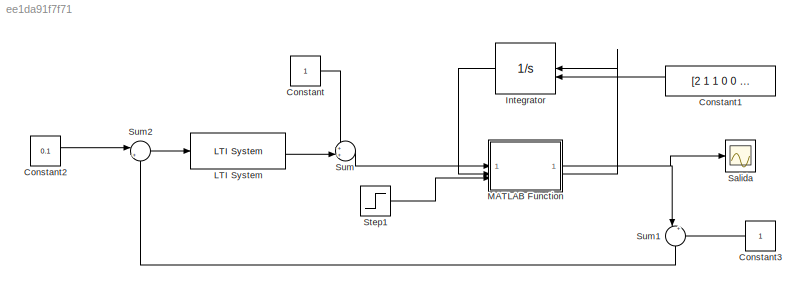
MODEL slx_ee1da91f7f71
KIND model
CONFIG AbsTol = auto
CONFIG EnableMultiTasking = off
CONFIG FixedStep = auto
CONFIG MaxStep = auto
CONFIG MinStep = auto
CONFIG RelTol = 1e-3
CONFIG SampleTimeConstraint = Unconstrained
CONFIG SolverName = VariableStepAuto
CONFIG StartTime = 0.0
CONFIG StopTime = 100
BLOCK [Constant] Constant
BLOCK [Constant] Constant1
  Value = [2 1 1 0 0 0]
BLOCK [Constant] Constant2
  Value = 0.1
BLOCK [Constant] Constant3
BLOCK [Integrator] Integrator
  InitialConditionSource = external
BLOCK [Reference] LTI System  REF=cstblocks/LTI System
  SourceBlock = cstblocks/LTI System
  SourceType = LTI Block
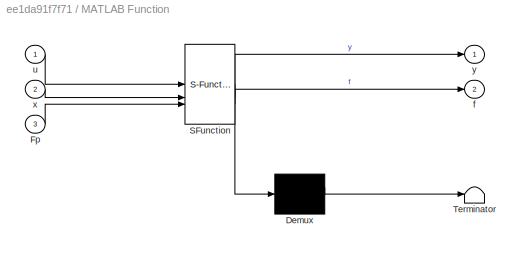
BLOCK [SubSystem] MATLAB Function
  ErrorFcn = Stateflow.Translate.translate
  PermitHierarchicalResolution = ExplicitOnly
  SFBlockType = MATLAB Function
  TreatAsAtomicUnit = on
BLOCK [Demux] MATLAB Function/ Demux 
  Outputs = 1
BLOCK [S-Function] MATLAB Function/ SFunction 
  EnableBusSupport = on
  FunctionName = sf_sfun
  PortCounts = [3 3]
  SFcnIsStateOwnerBlock = off
  SFunctionDeploymentMode = off
  Tag = Stateflow S-Function 2
BLOCK [Terminator] MATLAB Function/ Terminator 
BLOCK [Inport] MATLAB Function/Fp
  Port = 3
BLOCK [Outport] MATLAB Function/f
  Port = 2
BLOCK [Inport] MATLAB Function/u
BLOCK [Inport] MATLAB Function/x
  Port = 2
BLOCK [Outport] MATLAB Function/y
BLOCK [Scope] Salida
  Floating = off
  NumInputPorts = 1
  ScopeSpecificationString = Simulink.scopes.TimeScopeBlockCfg('CurrentConfiguration', extmgr.ConfigurationSet(extmgr.Configuration('Core','General UI',true),extmgr.Configuration('Core','Source UI',true),extmgr.Configuration('Sources','WiredSimulink',true),extmgr.Configuration('Visuals','Time Domain',true,'SerializedDisplays',{struct('MinYLimReal','0.98686','MaxYLimReal','1.11826','YLabelReal','','MinYLimMag','0.98686','MaxYL...<+1366ch>
BLOCK [Step] Step1
  After = 0
  SampleTime = 0
BLOCK [Sum] Sum
  Inputs = ++|
BLOCK [Sum] Sum1
  Inputs = |+-
  NameLocation = left
BLOCK [Sum] Sum2
  Inputs = |+-
LINE Constant1:1 -> Integrator:2
LINE Constant2:1 -> Sum2:1
LINE Constant3:1 -> Sum1:2
LINE Constant:1 -> Sum:1
LINE Integrator:1 -> MATLAB Function:2
LINE LTI System:1 -> Sum:2
NET MATLAB Function:1 -> Salida:1, Sum1:1
LINE MATLAB Function:2 -> Integrator:1
LINE Step1:1 -> MATLAB Function:3
LINE Sum1:1 -> Sum2:2
LINE Sum2:1 -> LTI System:1
LINE Sum:1 -> MATLAB Function:1
note: NET lines group one-source signal fan-out (src -> all destinations, sorted); 1:1 wires keep LINE
CHART MATLAB Function states=1 transitions=1
  STATE_LABEL 'eML_blk_kernel()'
  STATE_LABEL 'SCRIPT:\nfunction [y,f] = fcn(u, x, Fp)\n    y = x(2);\n    f1 = (x(3)-sqrt(x(1)-x(2)))/power(x(1), 2);\n    f2 = (sqrt(x(1)-x(2))-sqrt(x(2)) + Fp )/power(x(2), 2);\n    f3 = x(4);\n    f4 = x(5);\n    f5 = x(6);\n    f6 = (u - (1/2)*x(6) - (3/2)*x(5) - 2*x(4) - x(3)) * 16;\n    f = [f1; f2; f3; f4; f5; f6];'
CHART  states=0 transitions=0
